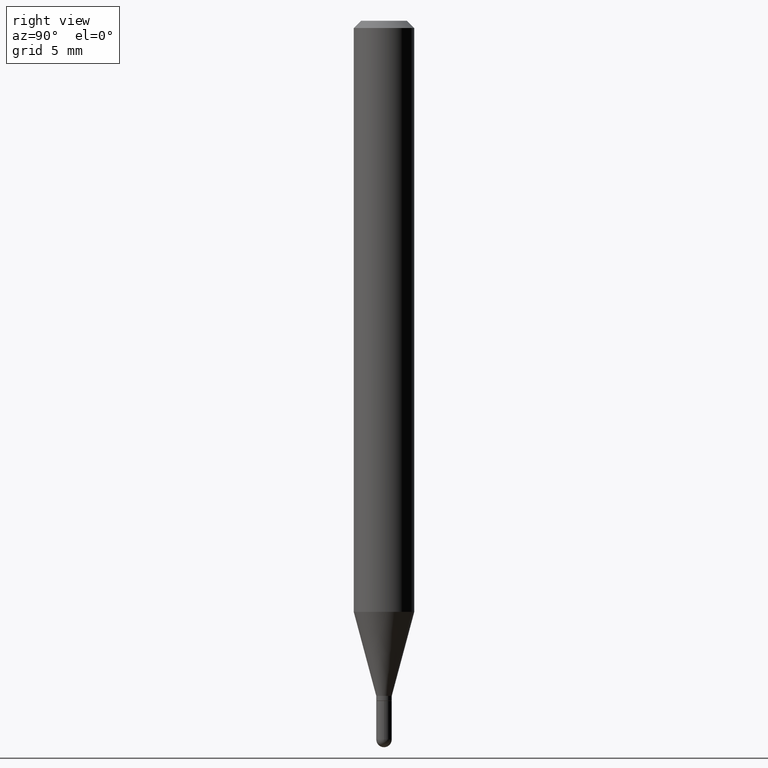
[diagram: clean part render]
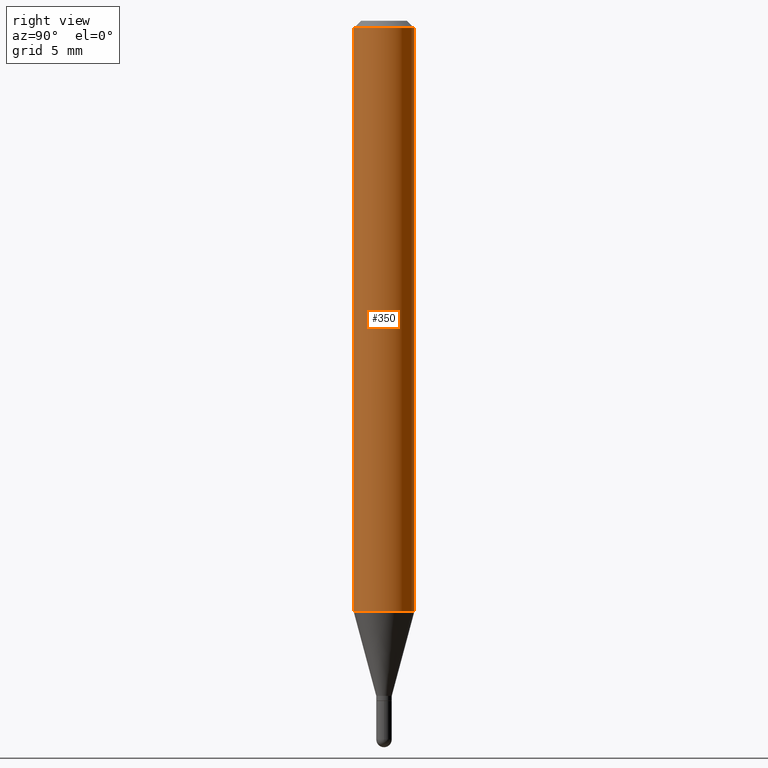
[diagram: same view with one face highlighted and labeled with its STEP entity id]
A machine part, right view. The second image highlights one B-rep face of the part: STEP entity #350.
In plain terms, the highlighted cylindrical surface (edge-blend (fillet) strip) has radius 1.5875 mm, axis along (-0, 0, 1).
Its self-contained STEP definition (entity closure, byte-faithful):
#9 = CIRCLE ( 'NONE', #393, 0.06250000000000000000 ) ;
#17 = ORIENTED_EDGE ( 'NONE', *, *, #234, .F. ) ;
#18 = VERTEX_POINT ( 'NONE', #385 ) ;
#35 = DIRECTION ( 'NONE',  ( -2.445455924568288198E-29, 3.491499786051648296E-15, 1.000000000000000000 ) ) ;
#47 = DIRECTION ( 'NONE',  ( -2.445455924568288198E-29, 3.491499786051648296E-15, 1.000000000000000000 ) ) ;
#75 = CARTESIAN_POINT ( 'NONE',  ( -4.364351673553618406E-16, -0.06250000000000426048, -1.220459637448047419 ) ) ;
#104 = ORIENTED_EDGE ( 'NONE', *, *, #241, .F. ) ;
#107 = CARTESIAN_POINT ( 'NONE',  ( 4.440892098500920998E-16, 0.06249999999999571176, -1.220459637448047863 ) ) ;
#108 = AXIS2_PLACEMENT_3D ( 'NONE', #441, #47, #359 ) ;
#121 = LINE ( 'NONE', #510, #452 ) ;
#124 = CYLINDRICAL_SURFACE ( 'NONE', #108, 0.06250000000000000000 ) ;
#151 = VERTEX_POINT ( 'NONE', #107 ) ;
#159 = VECTOR ( 'NONE', #447, 39.37007874015748143 ) ;
#164 = CARTESIAN_POINT ( 'NONE',  ( 4.440892098500924943E-16, 0.06249999999999993755, -0.01499999999999997863 ) ) ;
#187 = VERTEX_POINT ( 'NONE', #164 ) ;
#212 = ORIENTED_EDGE ( 'NONE', *, *, #305, .T. ) ;
#234 = EDGE_CURVE ( 'NONE', #18, #187, #9, .T. ) ;
#238 = LINE ( 'NONE', #317, #159 ) ;
#241 = EDGE_CURVE ( 'NONE', #256, #18, #238, .T. ) ;
#256 = VERTEX_POINT ( 'NONE', #75 ) ;
#264 = CARTESIAN_POINT ( 'NONE',  ( 2.984580251093793523E-29, -4.261234563034530166E-15, -1.220459637448047641 ) ) ;
#270 = FACE_OUTER_BOUND ( 'NONE', #386, .T. ) ;
#279 = DIRECTION ( 'NONE',  ( -2.445455924568288198E-29, 3.491499786051648296E-15, 1.000000000000000000 ) ) ;
#305 = EDGE_CURVE ( 'NONE', #256, #151, #506, .T. ) ;
#314 = AXIS2_PLACEMENT_3D ( 'NONE', #264, #35, #470 ) ;
#317 = CARTESIAN_POINT ( 'NONE',  ( -4.364351673553916201E-16, -0.06250000000000000000, 2.182187366282280185E-16 ) ) ;
#320 = CARTESIAN_POINT ( 'NONE',  ( 3.668183886852373582E-31, -5.237249679077389564E-17, -0.01499999999999976179 ) ) ;
#321 = DIRECTION ( 'NONE',  ( -2.445455924568288198E-29, 3.491499786051648691E-15, 1.000000000000000000 ) ) ;
#344 = EDGE_CURVE ( 'NONE', #151, #187, #121, .T. ) ;
#350 = ADVANCED_FACE ( 'NONE', ( #270 ), #124, .T. ) ;
#359 = DIRECTION ( 'NONE',  ( -6.982962677686265922E-15, -1.000000000000000000, 3.491499786051648296E-15 ) ) ;
#385 = CARTESIAN_POINT ( 'NONE',  ( -4.364351673553912750E-16, -0.06250000000000005551, -0.01499999999999954321 ) ) ;
#386 = EDGE_LOOP ( 'NONE', ( #212, #429, #17, #104 ) ) ;
#393 = AXIS2_PLACEMENT_3D ( 'NONE', #320, #279, #444 ) ;
#429 = ORIENTED_EDGE ( 'NONE', *, *, #344, .T. ) ;
#441 = CARTESIAN_POINT ( 'NONE',  ( 0.000000000000000000, 0.000000000000000000, 0.000000000000000000 ) ) ;
#444 = DIRECTION ( 'NONE',  ( -6.982962677686265922E-15, -1.000000000000000000, 3.483106191921935554E-15 ) ) ;
#447 = DIRECTION ( 'NONE',  ( -2.445455924568288198E-29, 3.491499786051648691E-15, 1.000000000000000000 ) ) ;
#452 = VECTOR ( 'NONE', #321, 39.37007874015748143 ) ;
#470 = DIRECTION ( 'NONE',  ( -6.982962677686265922E-15, -1.000000000000000000, 4.370956789862821150E-15 ) ) ;
#506 = CIRCLE ( 'NONE', #314, 0.06250000000000000000 ) ;
#510 = CARTESIAN_POINT ( 'NONE',  ( 4.440892098500625669E-16, 0.06250000000000000000, -2.182187366282280185E-16 ) ) ;